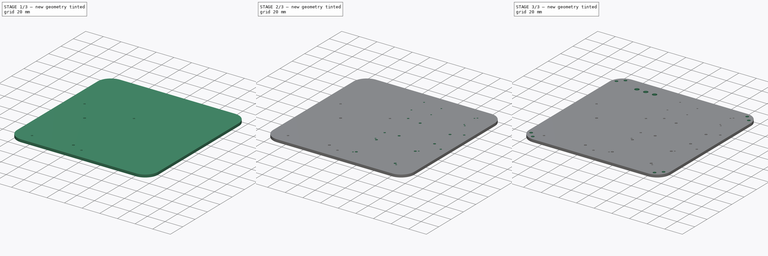
[diagram: build sequence overview — one tinted view per stage of 3, left to right]
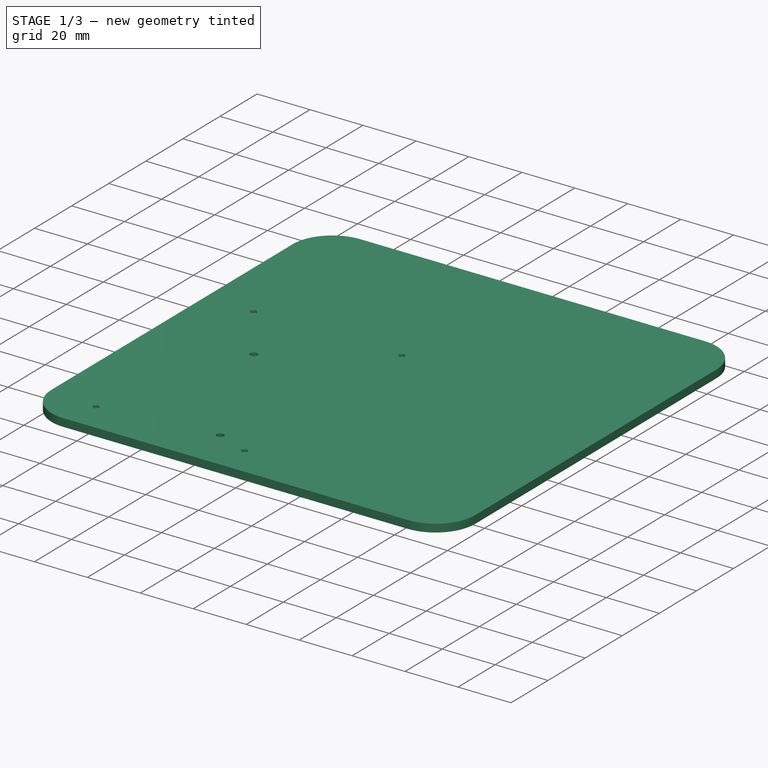
[diagram: stage 1 of 3 — iso view after this stage's code; geometry added in this stage tinted green]
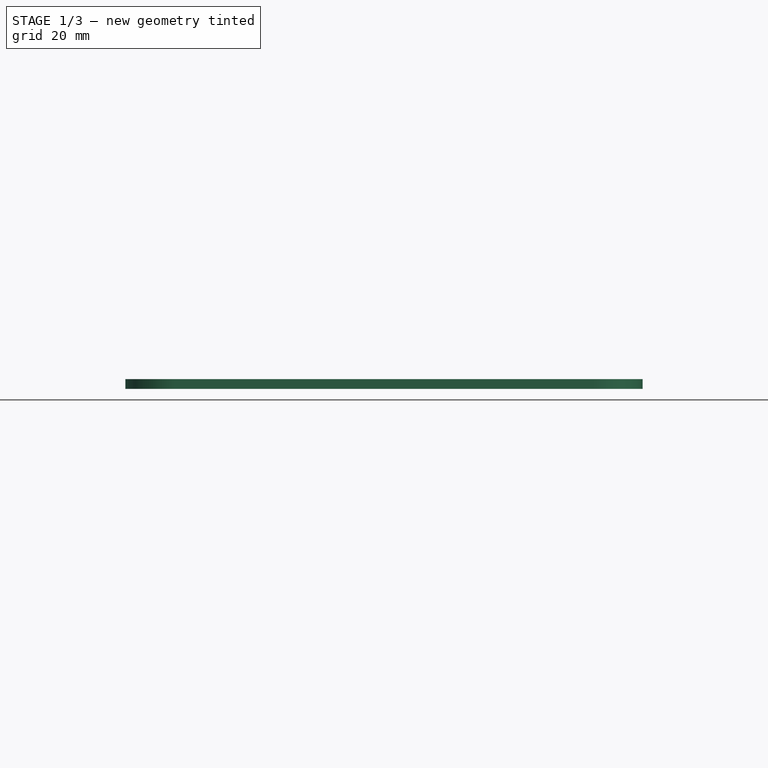
[diagram: stage 1 of 3 — front view after this stage's code; geometry added in this stage tinted green]
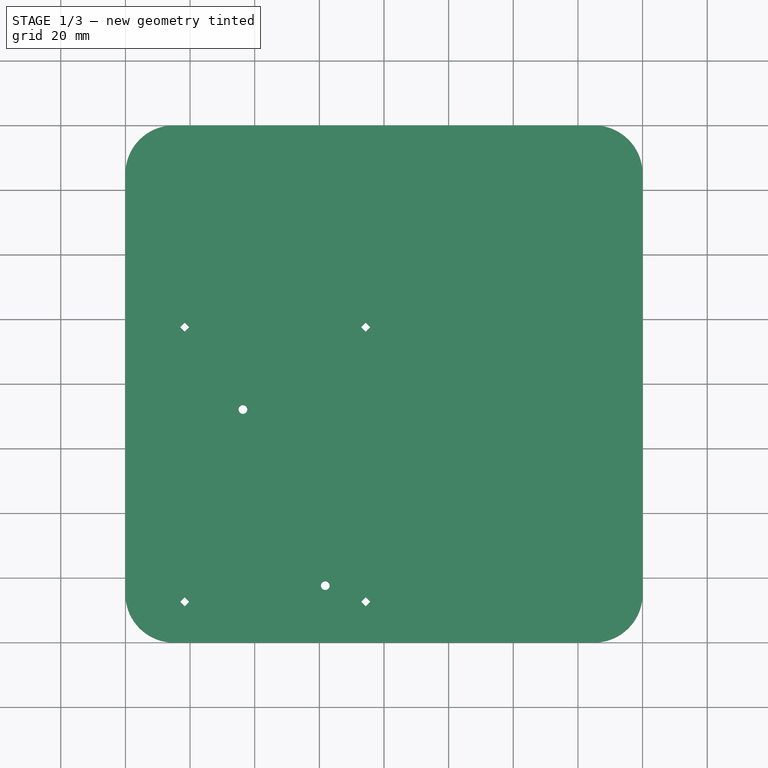
[diagram: stage 1 of 3 — top view after this stage's code; geometry added in this stage tinted green]
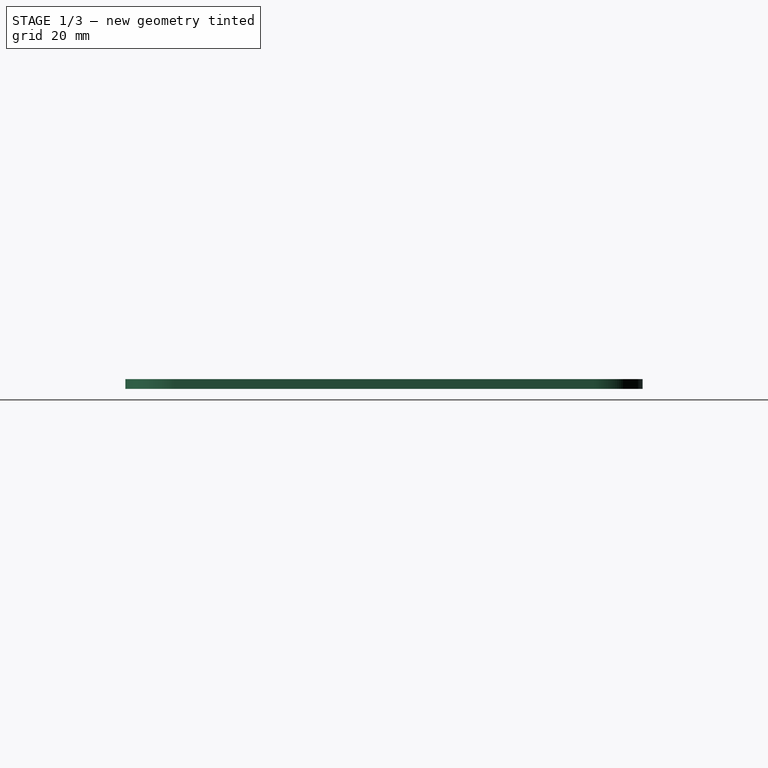
[diagram: stage 1 of 3 — right view after this stage's code; geometry added in this stage tinted green]
FCSTD DOCUMENT  (FreeCAD 0.16R6151 (Git))
Label: Board
License: All rights reserved
LicenseURL: http://en.wikipedia.org/wiki/All_rights_reserved
objects: Sketcher::SketchObject×7, PartDesign::Pocket×6, PartDesign::Pad×1
note: 21 computed .brp shape members not serialized (recipe doc carries the construction recipe); baked Part::Feature solids carry a one-line shape summary decoded from their .brp

FEATURE [Sketcher::SketchObject] Sketch  label="Board"
  sketch-geometry (8):
    g0: LineSegment StartX=15 StartY=0 StartZ=0 EndX=145 EndY=0 EndZ=0
    g1: LineSegment StartX=160 StartY=15 StartZ=0 EndX=160 EndY=145 EndZ=0
    g2: LineSegment StartX=145 StartY=160 StartZ=0 EndX=15 EndY=160 EndZ=0
    g3: LineSegment StartX=0 StartY=145 StartZ=0 EndX=0 EndY=15 EndZ=0
    g4: ArcOfCircle CenterX=15 CenterY=15 CenterZ=0 NormalX=0 NormalY=0 NormalZ=1 Radius=15 StartAngle=3.14159 EndAngle=4.71239
    g5: ArcOfCircle CenterX=145 CenterY=15 CenterZ=0 NormalX=0 NormalY=0 NormalZ=1 Radius=15 StartAngle=4.71239 EndAngle=6.28318
    g6: ArcOfCircle CenterX=145 CenterY=145 CenterZ=0 NormalX=0 NormalY=0 NormalZ=1 Radius=15 StartAngle=1.04525e-06 EndAngle=1.5708
    g7: ArcOfCircle CenterX=15 CenterY=145 CenterZ=0 NormalX=0 NormalY=0 NormalZ=1 Radius=15 StartAngle=1.57079 EndAngle=3.14159
  constraints (28):
    c: Horizontal(g0)
    c: Vertical(g1)
    c: Horizontal(g2)
    c: Vertical(g3)
    c: Coincident(g4,g3)
    c: Coincident(g4,g0)
    c: Coincident(g5,g0)
    c: Coincident(g5,g1)
    c: Coincident(g6,g2)
    c: Coincident(g6,g1)
    c: Equal(g2,g0)
    c: Equal(g1,g0)
    c: Equal(g3,g0)
    c: Equal(g4,g5)
    c: Equal(g5,g6)
    c: Tangent(g2,g6)
    c: Tangent(g1,g6)
    c: Tangent(g1,g5)
    c: Tangent(g0,g5)
    c: Tangent(g0,g4)
    c: Tangent(g3,g4)
    c: Coincident(g7,g3)
    c: Coincident(g7,g2)
    c: DistanceX(g3,g1) = 160
    c: Tangent(g3,g7)
    c: Radius(g7) = 15
    c: PointOnObject(g0,g-1)
    c: PointOnObject(g3,g-2)
FEATURE [PartDesign::Pad] Pad  label="BoardPad"
  Length = 3
  Length2 = 100
  Sketch = -> Sketch
  Type = 0
FEATURE [Sketcher::SketchObject] Sketch001  label="RaspberryMounting"
  Support = -> Pad [Face10]
  sketch-geometry (26):
    g0: Circle CenterX=36.343 CenterY=72.0975 CenterZ=0 NormalX=0 NormalY=0 NormalZ=1 Radius=1.35
    g1: Circle CenterX=61.843 CenterY=17.5975 CenterZ=0 NormalX=0 NormalY=0 NormalZ=1 Radius=1.35
    g2: LineSegment StartX=18.343 StartY=99.0117 StartZ=0 EndX=16.9288 EndY=97.5975 EndZ=0
    g3: LineSegment StartX=16.9288 StartY=97.5975 StartZ=0 EndX=18.343 EndY=96.1833 EndZ=0
    g4: LineSegment StartX=18.343 StartY=96.1833 StartZ=0 EndX=19.7572 EndY=97.5975 EndZ=0
    g5: LineSegment StartX=19.7572 StartY=97.5975 StartZ=0 EndX=18.343 EndY=99.0117 EndZ=0
    g6: Circle [constr] CenterX=18.343 CenterY=97.5975 CenterZ=0 NormalX=0 NormalY=0 NormalZ=1 Radius=1.41421
    g7: LineSegment [constr] StartX=18.343 StartY=97.5975 StartZ=0 EndX=18.343 EndY=0 EndZ=0
    g8: LineSegment StartX=74.343 StartY=11.1833 StartZ=0 EndX=75.7572 EndY=12.5975 EndZ=0
    g9: LineSegment StartX=75.7572 StartY=12.5975 StartZ=0 EndX=74.343 EndY=14.0117 EndZ=0
    g10: LineSegment StartX=74.343 StartY=14.0117 StartZ=0 EndX=72.9288 EndY=12.5975 EndZ=0
    g11: LineSegment StartX=72.9288 StartY=12.5975 StartZ=0 EndX=74.343 EndY=11.1833 EndZ=0
    g12: Circle [constr] CenterX=74.343 CenterY=12.5975 CenterZ=0 NormalX=0 NormalY=0 NormalZ=1 Radius=1.41421
    g13: LineSegment StartX=18.343 StartY=11.1833 StartZ=0 EndX=19.7572 EndY=12.5975 EndZ=0
    g14: LineSegment StartX=19.7572 StartY=12.5975 StartZ=0 EndX=18.343 EndY=14.0117 EndZ=0
    g15: LineSegment StartX=18.343 StartY=14.0117 StartZ=0 EndX=16.9288 EndY=12.5975 EndZ=0
    g16: LineSegment StartX=16.9288 StartY=12.5975 StartZ=0 EndX=18.343 EndY=11.1833 EndZ=0
    g17: Circle [constr] CenterX=18.343 CenterY=12.5975 CenterZ=0 NormalX=0 NormalY=0 NormalZ=1 Radius=1.41421
    g18: LineSegment StartX=74.343 StartY=96.1833 StartZ=0 EndX=75.7572 EndY=97.5975 EndZ=0
    g19: LineSegment StartX=75.7572 StartY=97.5975 StartZ=0 EndX=74.343 EndY=99.0117 EndZ=0
    g20: LineSegment StartX=74.343 StartY=99.0117 StartZ=0 EndX=72.9288 EndY=97.5975 EndZ=0
    g21: LineSegment StartX=72.9288 StartY=97.5975 StartZ=0 EndX=74.343 EndY=96.1833 EndZ=0
    g22: Circle [constr] CenterX=74.343 CenterY=97.5975 CenterZ=0 NormalX=0 NormalY=0 NormalZ=1 Radius=1.41421
    g23: LineSegment [constr] StartX=74.343 StartY=97.5975 StartZ=0 EndX=74.343 EndY=0 EndZ=0
    g24: LineSegment [constr] StartX=74.343 StartY=97.5975 StartZ=0 EndX=0 EndY=97.5975 EndZ=0
    g25: LineSegment [constr] StartX=74.343 StartY=12.5975 StartZ=0 EndX=0 EndY=12.5975 EndZ=0
  constraints (76):
    c: Equal(g1,g0)
    c: Radius(g0) = 1.35
    c: DistanceX(g1,g0) = -25.5
    c: DistanceY(g0,g1) = -54.5
    c: Coincident(g2,g3)
    c: Coincident(g3,g4)
    c: Coincident(g4,g5)
    c: Coincident(g5,g2)
    c: Equal(g2,g3)
    c: Equal(g2,g4)
    c: Equal(g2,g5)
    c: PointOnObject(g2,g6)
    c: PointOnObject(g3,g6)
    c: PointOnObject(g4,g6)
    c: PointOnObject(g5,g6)
    c: Coincident(g7,g6)
    c: PointOnObject(g7,g-1)
    c: Vertical(g7)
    c: PointOnObject(g2,g7)
    c: Distance(g3) = 2
    c: DistanceY(g2,g0) = -25.5
    c: DistanceX(g3,g0) = 18
    c: Coincident(g8,g9)
    c: Coincident(g9,g10)
    c: Coincident(g10,g11)
    c: Coincident(g11,g8)
    c: Equal(g8,g9)
    c: Equal(g8,g10)
    c: Equal(g8,g11)
    c: PointOnObject(g8,g12)
    c: PointOnObject(g9,g12)
    c: PointOnObject(g10,g12)
    c: PointOnObject(g11,g12)
    c: Coincident(g13,g14)
    c: Coincident(g14,g15)
    c: Coincident(g15,g16)
    c: Coincident(g16,g13)
    c: Equal(g13,g14)
    c: Equal(g13,g15)
    c: Equal(g13,g16)
    c: PointOnObject(g13,g17)
    c: PointOnObject(g14,g17)
    c: PointOnObject(g15,g17)
    c: PointOnObject(g16,g17)
    c: Coincident(g18,g19)
    c: Coincident(g19,g20)
    c: Coincident(g20,g21)
    c: Coincident(g21,g18)
    c: Equal(g18,g19)
    c: Equal(g18,g20)
    c: Equal(g18,g21)
    c: PointOnObject(g18,g22)
    c: PointOnObject(g19,g22)
    c: PointOnObject(g20,g22)
    c: PointOnObject(g21,g22)
    c: Distance(g9) = 2
    c: Distance(g14) = 2
    c: PointOnObject(g17,g7)
    c: PointOnObject(g13,g7)
    c: Coincident(g23,g22)
    c: PointOnObject(g23,g-1)
    c: Vertical(g23)
    c: PointOnObject(g12,g23)
    c: PointOnObject(g8,g23)
    c: PointOnObject(g18,g23)
    c: Distance(g18) = 2
    c: Coincident(g24,g22)
    c: PointOnObject(g24,g-2)
    c: Horizontal(g24)
    c: PointOnObject(g6,g24)
    c: Coincident(g25,g12)
    c: PointOnObject(g25,g-2)
    c: Horizontal(g25)
    c: PointOnObject(g17,g25)
    c: DistanceY(g1,g10) = -5
    c: DistanceX(g1,g9) = 12.5
FEATURE [PartDesign::Pocket] Pocket  label="RaspberryMountingPocket"
  Length = 5
  Sketch = -> Sketch001
  Type = 1
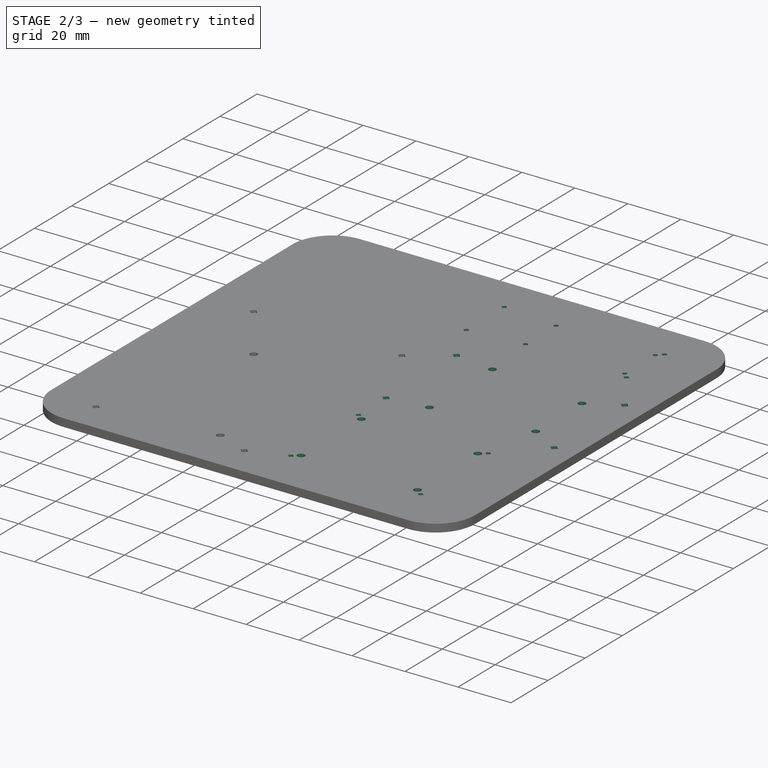
[diagram: stage 2 of 3 — iso view after this stage's code; geometry added in this stage tinted green]
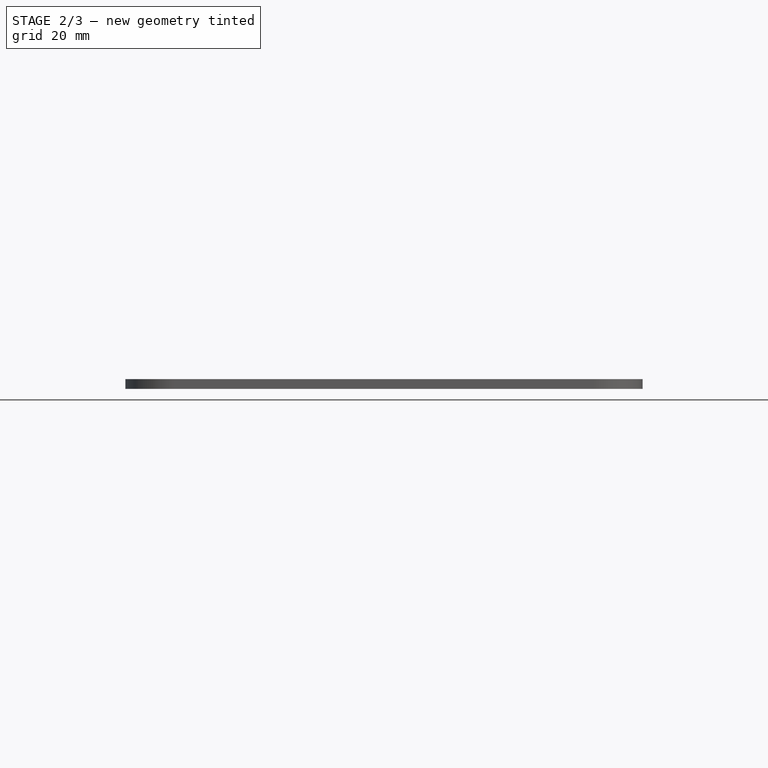
[diagram: stage 2 of 3 — front view after this stage's code; geometry added in this stage tinted green]
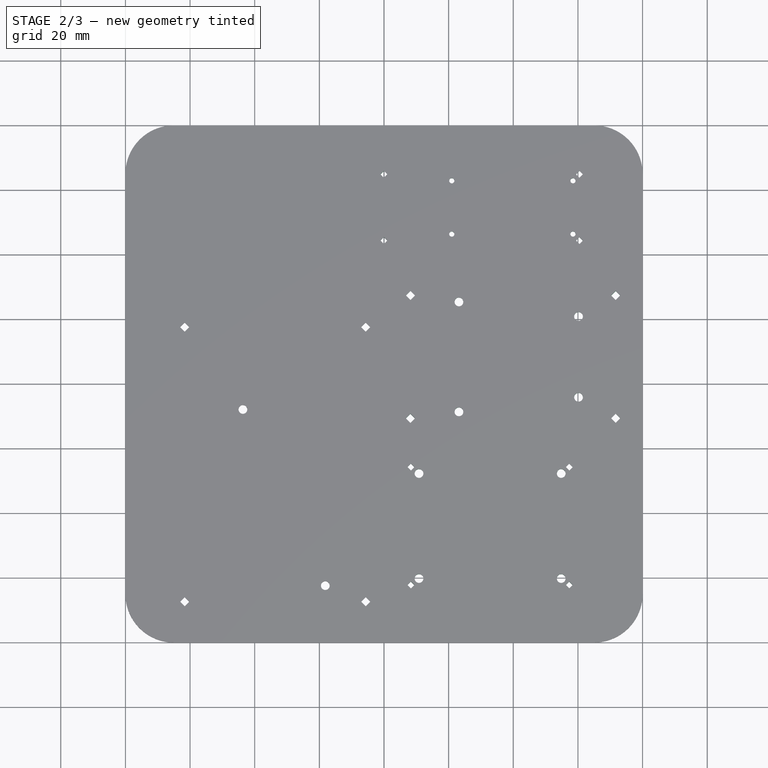
[diagram: stage 2 of 3 — top view after this stage's code; geometry added in this stage tinted green]
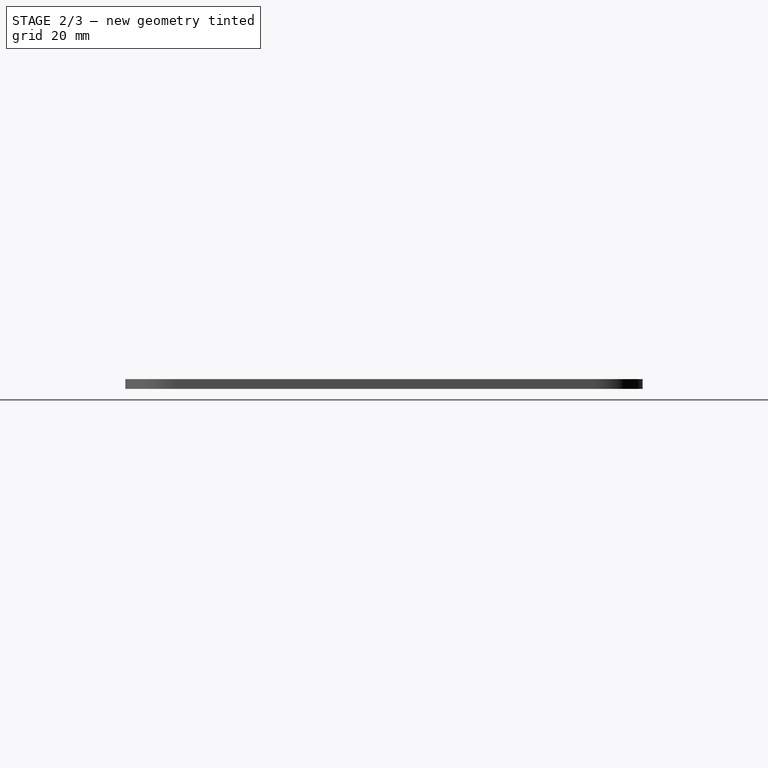
[diagram: stage 2 of 3 — right view after this stage's code; geometry added in this stage tinted green]
FEATURE [Sketcher::SketchObject] Sketch002  label="RelayMounting"
  Support = -> Pocket [Face5]
  sketch-geometry (32):
    g0: Circle CenterX=90.8318 CenterY=52.2837 CenterZ=0 NormalX=0 NormalY=0 NormalZ=1 Radius=1.35
    g1: Circle CenterX=134.832 CenterY=19.7837 CenterZ=0 NormalX=0 NormalY=0 NormalZ=1 Radius=1.35
    g2: LineSegment StartX=88.3318 StartY=53.223 StartZ=0 EndX=89.3924 EndY=54.2837 EndZ=0
    g3: LineSegment StartX=89.3924 StartY=54.2837 StartZ=0 EndX=88.3318 EndY=55.3443 EndZ=0
    g4: LineSegment StartX=88.3318 StartY=55.3443 StartZ=0 EndX=87.2711 EndY=54.2837 EndZ=0
    g5: LineSegment StartX=87.2711 StartY=54.2837 StartZ=0 EndX=88.3318 EndY=53.223 EndZ=0
    g6: Circle [constr] CenterX=88.3318 CenterY=54.2837 CenterZ=0 NormalX=0 NormalY=0 NormalZ=1 Radius=1.06066
    g7: LineSegment [constr] StartX=88.3318 StartY=54.2837 StartZ=0 EndX=88.3318 EndY=0 EndZ=0
    g8: LineSegment StartX=137.332 StartY=16.723 StartZ=0 EndX=138.392 EndY=17.7837 EndZ=0
    g9: LineSegment StartX=138.392 StartY=17.7837 StartZ=0 EndX=137.332 EndY=18.8443 EndZ=0
    g10: LineSegment StartX=137.332 StartY=18.8443 StartZ=0 EndX=136.271 EndY=17.7837 EndZ=0
    g11: LineSegment StartX=136.271 StartY=17.7837 StartZ=0 EndX=137.332 EndY=16.723 EndZ=0
    g12: Circle [constr] CenterX=137.332 CenterY=17.7837 CenterZ=0 NormalX=0 NormalY=0 NormalZ=1 Radius=1.06066
    g13: LineSegment StartX=88.3318 StartY=16.723 StartZ=0 EndX=89.3924 EndY=17.7837 EndZ=0
    g14: LineSegment StartX=89.3924 StartY=17.7837 StartZ=0 EndX=88.3318 EndY=18.8443 EndZ=0
    g15: LineSegment StartX=88.3318 StartY=18.8443 StartZ=0 EndX=87.2711 EndY=17.7837 EndZ=0
    g16: LineSegment StartX=87.2711 StartY=17.7837 StartZ=0 EndX=88.3318 EndY=16.723 EndZ=0
    g17: Circle [constr] CenterX=88.3318 CenterY=17.7837 CenterZ=0 NormalX=0 NormalY=0 NormalZ=1 Radius=1.06066
    g18: LineSegment StartX=137.332 StartY=53.223 StartZ=0 EndX=138.392 EndY=54.2837 EndZ=0
    g19: LineSegment StartX=138.392 StartY=54.2837 StartZ=0 EndX=137.332 EndY=55.3443 EndZ=0
    g20: LineSegment StartX=137.332 StartY=55.3443 StartZ=0 EndX=136.271 EndY=54.2837 EndZ=0
    g21: LineSegment StartX=136.271 StartY=54.2837 StartZ=0 EndX=137.332 EndY=53.223 EndZ=0
    g22: Circle [constr] CenterX=137.332 CenterY=54.2837 CenterZ=0 NormalX=0 NormalY=0 NormalZ=1 Radius=1.06066
    g23: LineSegment [constr] StartX=137.332 StartY=54.2837 StartZ=0 EndX=137.332 EndY=0 EndZ=0
    g24: LineSegment [constr] StartX=137.332 StartY=54.2837 StartZ=0 EndX=0 EndY=54.2837 EndZ=0
    g25: LineSegment [constr] StartX=137.332 StartY=17.7837 StartZ=0 EndX=0 EndY=17.7837 EndZ=0
    g26: Circle CenterX=90.8318 CenterY=19.7837 CenterZ=0 NormalX=0 NormalY=0 NormalZ=1 Radius=1.35
    g27: Circle CenterX=134.832 CenterY=52.2837 CenterZ=0 NormalX=0 NormalY=0 NormalZ=1 Radius=1.35
    g28: LineSegment [constr] StartX=90.8318 StartY=52.2837 StartZ=0 EndX=134.832 EndY=52.2837 EndZ=0
    g29: LineSegment [constr] StartX=134.832 StartY=52.2837 StartZ=0 EndX=134.832 EndY=19.7837 EndZ=0
    g30: LineSegment [constr] StartX=134.832 StartY=19.7837 StartZ=0 EndX=90.8318 EndY=19.7837 EndZ=0
    g31: LineSegment [constr] StartX=90.8318 StartY=19.7837 StartZ=0 EndX=90.8318 EndY=52.2837 EndZ=0
  constraints (90):
    c: Equal(g1,g0)
    c: Radius(g0) = 1.35
    c: DistanceX(g1,g0) = -44
    c: DistanceY(g0,g1) = -32.5
    c: Coincident(g2,g3)
    c: Coincident(g3,g4)
    c: Coincident(g4,g5)
    c: Coincident(g5,g2)
    c: Equal(g2,g3)
    c: Equal(g2,g4)
    c: Equal(g2,g5)
    c: PointOnObject(g2,g6)
    c: PointOnObject(g3,g6)
    c: PointOnObject(g4,g6)
    c: PointOnObject(g5,g6)
    c: Coincident(g7,g6)
    c: PointOnObject(g7,g-1)
    c: Vertical(g7)
    c: PointOnObject(g2,g7)
    c: DistanceY(g2,g0) = -2
    c: DistanceX(g3,g0) = 2.5
    c: Coincident(g8,g9)
    c: Coincident(g9,g10)
    c: Coincident(g10,g11)
    c: Coincident(g11,g8)
    c: Equal(g8,g9)
    c: Equal(g8,g10)
    c: Equal(g8,g11)
    c: PointOnObject(g8,g12)
    c: PointOnObject(g9,g12)
    c: PointOnObject(g10,g12)
    c: PointOnObject(g11,g12)
    c: Coincident(g13,g14)
    c: Coincident(g14,g15)
    c: Coincident(g15,g16)
    c: Coincident(g16,g13)
    c: Equal(g13,g14)
    c: Equal(g13,g15)
    c: Equal(g13,g16)
    c: PointOnObject(g13,g17)
    c: PointOnObject(g14,g17)
    c: PointOnObject(g15,g17)
    c: PointOnObject(g16,g17)
    c: Coincident(g18,g19)
    c: Coincident(g19,g20)
    c: Coincident(g20,g21)
    c: Coincident(g21,g18)
    c: Equal(g18,g19)
    c: Equal(g18,g20)
    c: Equal(g18,g21)
    c: PointOnObject(g18,g22)
    c: PointOnObject(g19,g22)
    c: PointOnObject(g20,g22)
    c: PointOnObject(g21,g22)
    c: Distance(g9) = 1.5
    c: PointOnObject(g17,g7)
    c: PointOnObject(g13,g7)
    c: Coincident(g23,g22)
    c: PointOnObject(g23,g-1)
    c: Vertical(g23)
    c: PointOnObject(g12,g23)
    c: PointOnObject(g8,g23)
    c: PointOnObject(g18,g23)
    c: Coincident(g24,g22)
    c: PointOnObject(g24,g-2)
    c: Horizontal(g24)
    c: PointOnObject(g6,g24)
    c: Coincident(g25,g12)
    c: PointOnObject(g25,g-2)
    c: Horizontal(g25)
    c: PointOnObject(g17,g25)
    c: DistanceY(g1,g10) = -2
    c: DistanceX(g1,g9) = 2.5
    c: Equal(g0,g27)
    c: Equal(g27,g26)
    c: Coincident(g28,g29)
    c: Coincident(g29,g30)
    c: Coincident(g30,g31)
    c: Coincident(g31,g28)
    c: Horizontal(g28)
    c: Horizontal(g30)
    c: Vertical(g29)
    c: Vertical(g31)
    c: Coincident(g28,g0)
    c: Coincident(g29,g1)
    c: Coincident(g26,g30)
    c: Coincident(g27,g28)
    c: Equal(g16,g9)
    c: Equal(g3,g19)
    c: Equal(g19,g9)
FEATURE [PartDesign::Pocket] Pocket001  label="RelayMountingPocket"
  Length = 5
  Sketch = -> Sketch002
  Type = 1
FEATURE [Sketcher::SketchObject] Sketch003  label="RFIDMounting"
  Support = -> Pocket001 [Face5]
  sketch-geometry (33):
    g0: Circle CenterX=103.185 CenterY=105.37 CenterZ=0 NormalX=0 NormalY=0 NormalZ=1 Radius=1.35
    g1: Circle CenterX=140.185 CenterY=75.8704 CenterZ=0 NormalX=0 NormalY=0 NormalZ=1 Radius=1.35
    g2: LineSegment StartX=88.1855 StartY=105.956 StartZ=0 EndX=89.5997 EndY=107.37 EndZ=0
    g3: LineSegment StartX=89.5997 StartY=107.37 StartZ=0 EndX=88.1855 EndY=108.785 EndZ=0
    g4: LineSegment StartX=88.1855 StartY=108.785 StartZ=0 EndX=86.7713 EndY=107.37 EndZ=0
    g5: LineSegment StartX=86.7713 StartY=107.37 StartZ=0 EndX=88.1855 EndY=105.956 EndZ=0
    g6: Circle [constr] CenterX=88.1855 CenterY=107.37 CenterZ=0 NormalX=0 NormalY=0 NormalZ=1 Radius=1.41421
    g7: LineSegment [constr] StartX=88.1855 StartY=107.37 StartZ=0 EndX=88.1855 EndY=0 EndZ=0
    g8: LineSegment StartX=151.685 StartY=67.9562 StartZ=0 EndX=153.1 EndY=69.3704 EndZ=0
    g9: LineSegment StartX=153.1 StartY=69.3704 StartZ=0 EndX=151.685 EndY=70.7847 EndZ=0
    g10: LineSegment StartX=151.685 StartY=70.7847 StartZ=0 EndX=150.271 EndY=69.3704 EndZ=0
    g11: LineSegment StartX=150.271 StartY=69.3704 StartZ=0 EndX=151.685 EndY=67.9562 EndZ=0
    g12: Circle [constr] CenterX=151.685 CenterY=69.3704 CenterZ=0 NormalX=0 NormalY=0 NormalZ=1 Radius=1.41421
    g13: LineSegment StartX=88.1855 StartY=67.9562 StartZ=0 EndX=89.5997 EndY=69.3704 EndZ=0
    g14: LineSegment StartX=89.5997 StartY=69.3704 StartZ=0 EndX=88.1855 EndY=70.7847 EndZ=0
    g15: LineSegment StartX=88.1855 StartY=70.7847 StartZ=0 EndX=86.7713 EndY=69.3704 EndZ=0
    g16: LineSegment StartX=86.7713 StartY=69.3704 StartZ=0 EndX=88.1855 EndY=67.9562 EndZ=0
    g17: Circle [constr] CenterX=88.1855 CenterY=69.3704 CenterZ=0 NormalX=0 NormalY=0 NormalZ=1 Radius=1.41421
    g18: LineSegment StartX=151.685 StartY=105.956 StartZ=0 EndX=153.1 EndY=107.37 EndZ=0
    g19: LineSegment StartX=153.1 StartY=107.37 StartZ=0 EndX=151.685 EndY=108.785 EndZ=0
    g20: LineSegment StartX=151.685 StartY=108.785 StartZ=0 EndX=150.271 EndY=107.37 EndZ=0
    g21: LineSegment StartX=150.271 StartY=107.37 StartZ=0 EndX=151.685 EndY=105.956 EndZ=0
    g22: Circle [constr] CenterX=151.685 CenterY=107.37 CenterZ=0 NormalX=0 NormalY=0 NormalZ=1 Radius=1.41421
    g23: LineSegment [constr] StartX=151.685 StartY=107.37 StartZ=0 EndX=151.685 EndY=0 EndZ=0
    g24: LineSegment [constr] StartX=151.685 StartY=107.37 StartZ=0 EndX=0 EndY=107.37 EndZ=0
    g25: LineSegment [constr] StartX=151.685 StartY=69.3704 StartZ=0 EndX=0 EndY=69.3704 EndZ=0
    g26: Circle CenterX=103.185 CenterY=71.3704 CenterZ=0 NormalX=0 NormalY=0 NormalZ=1 Radius=1.35
    g27: Circle CenterX=140.185 CenterY=100.87 CenterZ=0 NormalX=0 NormalY=0 NormalZ=1 Radius=1.35
    g28: LineSegment [constr] StartX=103.185 StartY=105.37 StartZ=0 EndX=103.185 EndY=88.3704 EndZ=0
    g29: LineSegment [constr] StartX=103.185 StartY=88.3704 StartZ=0 EndX=103.185 EndY=71.3704 EndZ=0
    g30: LineSegment [constr] StartX=140.185 StartY=100.87 StartZ=0 EndX=140.185 EndY=88.3704 EndZ=0
    g31: LineSegment [constr] StartX=140.185 StartY=88.3704 StartZ=0 EndX=140.185 EndY=75.8704 EndZ=0
    g32: LineSegment [constr] StartX=103.185 StartY=88.3704 StartZ=0 EndX=140.185 EndY=88.3704 EndZ=0
  constraints (94):
    c: Equal(g1,g0)
    c: Radius(g0) = 1.35
    c: DistanceX(g1,g0) = -37
    c: Coincident(g2,g3)
    c: Coincident(g3,g4)
    c: Coincident(g4,g5)
    c: Coincident(g5,g2)
    c: Equal(g2,g3)
    c: Equal(g2,g4)
    c: Equal(g2,g5)
    c: PointOnObject(g2,g6)
    c: PointOnObject(g3,g6)
    c: PointOnObject(g4,g6)
    c: PointOnObject(g5,g6)
    c: Coincident(g7,g6)
    c: PointOnObject(g7,g-1)
    c: Vertical(g7)
    c: PointOnObject(g2,g7)
    c: Distance(g3) = 2
    c: DistanceY(g2,g0) = -2
    c: DistanceX(g3,g0) = 15
    c: Coincident(g8,g9)
    c: Coincident(g9,g10)
    c: Coincident(g10,g11)
    c: Coincident(g11,g8)
    c: Equal(g8,g9)
    c: Equal(g8,g10)
    c: Equal(g8,g11)
    c: PointOnObject(g8,g12)
    c: PointOnObject(g9,g12)
    c: PointOnObject(g10,g12)
    c: PointOnObject(g11,g12)
    c: Coincident(g13,g14)
    c: Coincident(g14,g15)
    c: Coincident(g15,g16)
    c: Coincident(g16,g13)
    c: Equal(g13,g14)
    c: Equal(g13,g15)
    c: Equal(g13,g16)
    c: PointOnObject(g13,g17)
    c: PointOnObject(g14,g17)
    c: PointOnObject(g15,g17)
    c: PointOnObject(g16,g17)
    c: Coincident(g18,g19)
    c: Coincident(g19,g20)
    c: Coincident(g20,g21)
    c: Coincident(g21,g18)
    c: Equal(g18,g19)
    c: Equal(g18,g20)
    c: Equal(g18,g21)
    c: PointOnObject(g18,g22)
    c: PointOnObject(g19,g22)
    c: PointOnObject(g20,g22)
    c: PointOnObject(g21,g22)
    c: Distance(g9) = 2
    c: Distance(g14) = 2
    c: PointOnObject(g17,g7)
    c: PointOnObject(g13,g7)
    c: Coincident(g23,g22)
    c: PointOnObject(g23,g-1)
    c: Vertical(g23)
    c: PointOnObject(g12,g23)
    c: PointOnObject(g8,g23)
    c: PointOnObject(g18,g23)
    c: Distance(g18) = 2
    c: Coincident(g24,g22)
    c: PointOnObject(g24,g-2)
    c: Horizontal(g24)
    c: PointOnObject(g6,g24)
    c: Coincident(g25,g12)
    c: PointOnObject(g25,g-2)
    c: Horizontal(g25)
    c: PointOnObject(g17,g25)
    c: DistanceX(g1,g9) = 11.5
    c: Equal(g27,g0)
    c: Equal(g0,g26)
    c: Coincident(g28,g0)
    c: Vertical(g28)
    c: Coincident(g28,g29)
    c: Coincident(g29,g26)
    c: Vertical(g29)
    c: Coincident(g30,g27)
    c: Vertical(g30)
    c: Coincident(g30,g31)
    c: Coincident(g31,g1)
    c: Vertical(g31)
    c: Coincident(g32,g28)
    c: Coincident(g32,g30)
    c: Horizontal(g32)
    c: Equal(g28,g29)
    c: Equal(g30,g31)
    c: DistanceY(g0,g26) = -34
    c: DistanceY(g27,g1) = -25
    c: DistanceY(g10,g26) = 2
FEATURE [PartDesign::Pocket] Pocket002  label="RFIDMountingPocket"
  Length = 5
  Sketch = -> Sketch003
  Type = 1
FEATURE [Sketcher::SketchObject] Sketch004  label="PowerMounting"
  Support = -> Pocket002 [Face5]
  sketch-geometry (32):
    g0: Circle CenterX=100.969 CenterY=142.871 CenterZ=0 NormalX=0 NormalY=0 NormalZ=1 Radius=0.8
    g1: Circle CenterX=138.469 CenterY=126.371 CenterZ=0 NormalX=0 NormalY=0 NormalZ=1 Radius=0.8
    g2: LineSegment StartX=79.9687 StartY=143.81 StartZ=0 EndX=81.0293 EndY=144.871 EndZ=0
    g3: LineSegment StartX=81.0293 StartY=144.871 StartZ=0 EndX=79.9687 EndY=145.931 EndZ=0
    g4: LineSegment StartX=79.9687 StartY=145.931 StartZ=0 EndX=78.908 EndY=144.871 EndZ=0
    g5: LineSegment StartX=78.908 StartY=144.871 StartZ=0 EndX=79.9687 EndY=143.81 EndZ=0
    g6: Circle [constr] CenterX=79.9687 CenterY=144.871 CenterZ=0 NormalX=0 NormalY=0 NormalZ=1 Radius=1.06066
    g7: LineSegment [constr] StartX=79.9687 StartY=144.871 StartZ=0 EndX=79.9687 EndY=0 EndZ=0
    g8: LineSegment StartX=140.469 StartY=123.31 StartZ=0 EndX=141.529 EndY=124.371 EndZ=0
    g9: LineSegment StartX=141.529 StartY=124.371 StartZ=0 EndX=140.469 EndY=125.431 EndZ=0
    g10: LineSegment StartX=140.469 StartY=125.431 StartZ=0 EndX=139.408 EndY=124.371 EndZ=0
    g11: LineSegment StartX=139.408 StartY=124.371 StartZ=0 EndX=140.469 EndY=123.31 EndZ=0
    g12: Circle [constr] CenterX=140.469 CenterY=124.371 CenterZ=0 NormalX=0 NormalY=0 NormalZ=1 Radius=1.06066
    g13: LineSegment StartX=79.9687 StartY=123.31 StartZ=0 EndX=81.0293 EndY=124.371 EndZ=0
    g14: LineSegment StartX=81.0293 StartY=124.371 StartZ=0 EndX=79.9687 EndY=125.431 EndZ=0
    g15: LineSegment StartX=79.9687 StartY=125.431 StartZ=0 EndX=78.908 EndY=124.371 EndZ=0
    g16: LineSegment StartX=78.908 StartY=124.371 StartZ=0 EndX=79.9687 EndY=123.31 EndZ=0
    g17: Circle [constr] CenterX=79.9687 CenterY=124.371 CenterZ=0 NormalX=0 NormalY=0 NormalZ=1 Radius=1.06066
    g18: LineSegment StartX=140.469 StartY=143.81 StartZ=0 EndX=141.529 EndY=144.871 EndZ=0
    g19: LineSegment StartX=141.529 StartY=144.871 StartZ=0 EndX=140.469 EndY=145.931 EndZ=0
    g20: LineSegment StartX=140.469 StartY=145.931 StartZ=0 EndX=139.408 EndY=144.871 EndZ=0
    g21: LineSegment StartX=139.408 StartY=144.871 StartZ=0 EndX=140.469 EndY=143.81 EndZ=0
    g22: Circle [constr] CenterX=140.469 CenterY=144.871 CenterZ=0 NormalX=0 NormalY=0 NormalZ=1 Radius=1.06066
    g23: LineSegment [constr] StartX=140.469 StartY=144.871 StartZ=0 EndX=140.469 EndY=0 EndZ=0
    g24: LineSegment [constr] StartX=140.469 StartY=144.871 StartZ=0 EndX=0 EndY=144.871 EndZ=0
    g25: LineSegment [constr] StartX=140.469 StartY=124.371 StartZ=0 EndX=0 EndY=124.371 EndZ=0
    g26: Circle CenterX=100.969 CenterY=126.371 CenterZ=0 NormalX=0 NormalY=0 NormalZ=1 Radius=0.8
    g27: Circle CenterX=138.469 CenterY=142.871 CenterZ=0 NormalX=0 NormalY=0 NormalZ=1 Radius=0.8
    g28: LineSegment [constr] StartX=100.969 StartY=142.871 StartZ=0 EndX=138.469 EndY=142.871 EndZ=0
    g29: LineSegment [constr] StartX=138.469 StartY=142.871 StartZ=0 EndX=138.469 EndY=126.371 EndZ=0
    g30: LineSegment [constr] StartX=138.469 StartY=126.371 StartZ=0 EndX=100.969 EndY=126.371 EndZ=0
    g31: LineSegment [constr] StartX=100.969 StartY=126.371 StartZ=0 EndX=100.969 EndY=142.871 EndZ=0
  constraints (90):
    c: Equal(g1,g0)
    c: Radius(g0) = 0.8
    c: DistanceX(g1,g0) = -37.5
    c: DistanceY(g0,g1) = -16.5
    c: Coincident(g2,g3)
    c: Coincident(g3,g4)
    c: Coincident(g4,g5)
    c: Coincident(g5,g2)
    c: Equal(g2,g3)
    c: Equal(g2,g4)
    c: Equal(g2,g5)
    c: PointOnObject(g2,g6)
    c: PointOnObject(g3,g6)
    c: PointOnObject(g4,g6)
    c: PointOnObject(g5,g6)
    c: Coincident(g7,g6)
    c: PointOnObject(g7,g-1)
    c: Vertical(g7)
    c: PointOnObject(g2,g7)
    c: DistanceY(g2,g0) = -2
    c: DistanceX(g3,g0) = 21
    c: Coincident(g8,g9)
    c: Coincident(g9,g10)
    c: Coincident(g10,g11)
    c: Coincident(g11,g8)
    c: Equal(g8,g9)
    c: Equal(g8,g10)
    c: Equal(g8,g11)
    c: PointOnObject(g8,g12)
    c: PointOnObject(g9,g12)
    c: PointOnObject(g10,g12)
    c: PointOnObject(g11,g12)
    c: Coincident(g13,g14)
    c: Coincident(g14,g15)
    c: Coincident(g15,g16)
    c: Coincident(g16,g13)
    c: Equal(g13,g14)
    c: Equal(g13,g15)
    c: Equal(g13,g16)
    c: PointOnObject(g13,g17)
    c: PointOnObject(g14,g17)
    c: PointOnObject(g15,g17)
    c: PointOnObject(g16,g17)
    c: Coincident(g18,g19)
    c: Coincident(g19,g20)
    c: Coincident(g20,g21)
    c: Coincident(g21,g18)
    c: Equal(g18,g19)
    c: Equal(g18,g20)
    c: Equal(g18,g21)
    c: PointOnObject(g18,g22)
    c: PointOnObject(g19,g22)
    c: PointOnObject(g20,g22)
    c: PointOnObject(g21,g22)
    c: Distance(g9) = 1.5
    c: PointOnObject(g17,g7)
    c: PointOnObject(g13,g7)
    c: Coincident(g23,g22)
    c: PointOnObject(g23,g-1)
    c: Vertical(g23)
    c: PointOnObject(g12,g23)
    c: PointOnObject(g8,g23)
    c: PointOnObject(g18,g23)
    c: Coincident(g24,g22)
    c: PointOnObject(g24,g-2)
    c: Horizontal(g24)
    c: PointOnObject(g6,g24)
    c: Coincident(g25,g12)
    c: PointOnObject(g25,g-2)
    c: Horizontal(g25)
    c: PointOnObject(g17,g25)
    c: DistanceY(g1,g10) = -2
    c: DistanceX(g1,g9) = 2
    c: Equal(g0,g27)
    c: Equal(g27,g26)
    c: Coincident(g28,g29)
    c: Coincident(g29,g30)
    c: Coincident(g30,g31)
    c: Coincident(g31,g28)
    c: Horizontal(g28)
    c: Horizontal(g30)
    c: Vertical(g29)
    c: Vertical(g31)
    c: Coincident(g28,g0)
    c: Coincident(g29,g1)
    c: Coincident(g26,g30)
    c: Coincident(g27,g28)
    c: Equal(g16,g9)
    c: Equal(g3,g19)
    c: Equal(g19,g9)
FEATURE [PartDesign::Pocket] Pocket003  label="PowerMountingPocket"
  Length = 5
  Sketch = -> Sketch004
  Type = 1
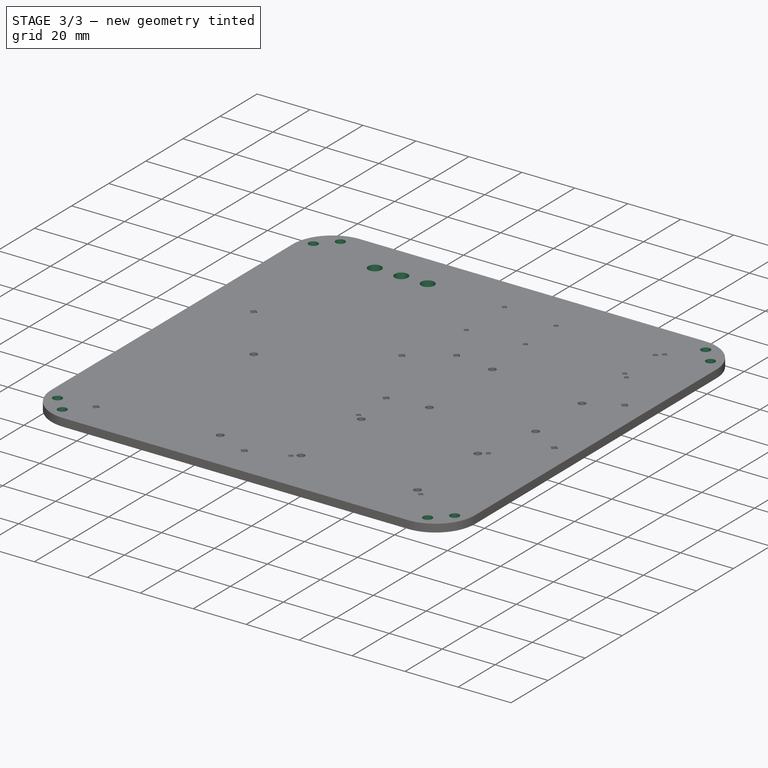
[diagram: stage 3 of 3 — iso view after this stage's code; geometry added in this stage tinted green]
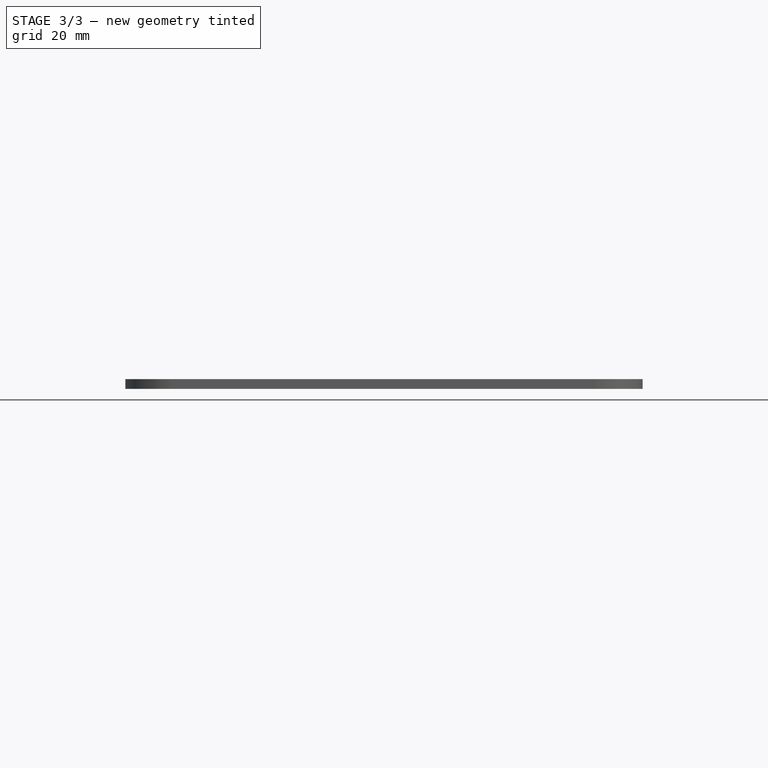
[diagram: stage 3 of 3 — front view after this stage's code; geometry added in this stage tinted green]
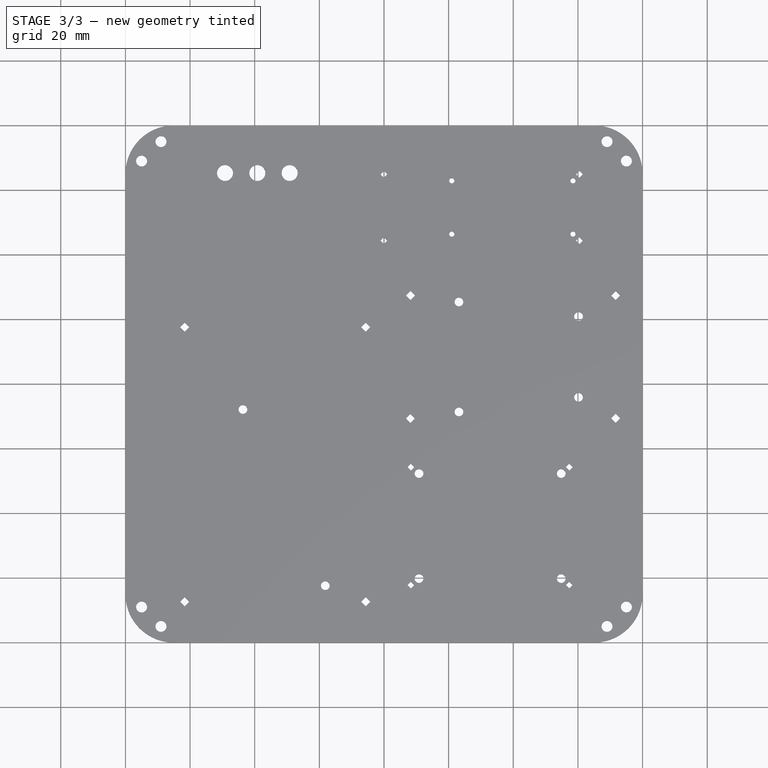
[diagram: stage 3 of 3 — top view after this stage's code; geometry added in this stage tinted green]
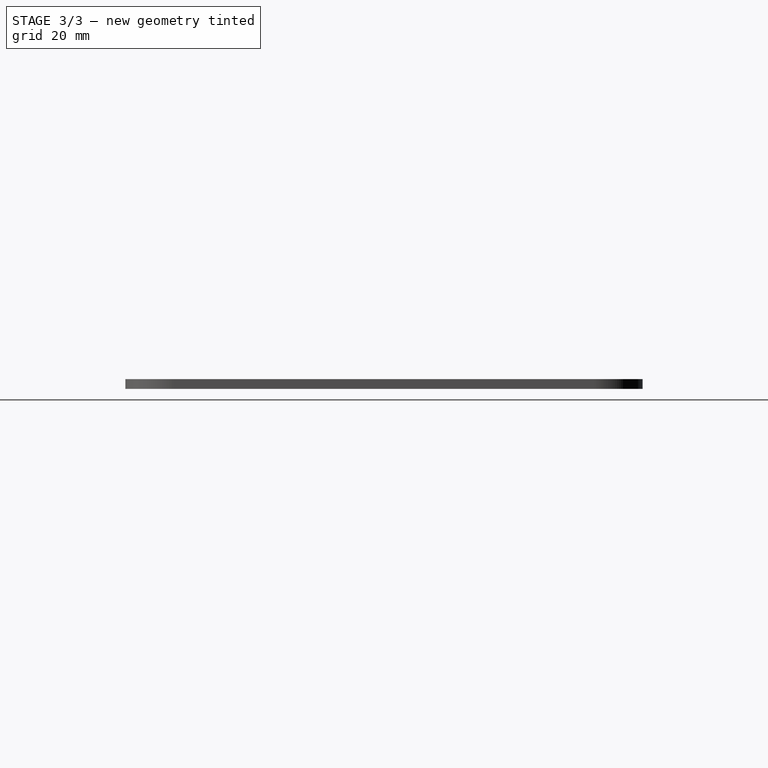
[diagram: stage 3 of 3 — right view after this stage's code; geometry added in this stage tinted green]
FEATURE [Sketcher::SketchObject] Sketch005  label="EdgeMounting"
  Support = -> Pocket003 [Face5]
  sketch-geometry (20):
    g0: Circle CenterX=5 CenterY=11 CenterZ=0 NormalX=0 NormalY=0 NormalZ=1 Radius=1.7
    g1: Circle CenterX=11 CenterY=5 CenterZ=0 NormalX=0 NormalY=0 NormalZ=1 Radius=1.7
    g2: Circle CenterX=155 CenterY=11 CenterZ=0 NormalX=0 NormalY=0 NormalZ=1 Radius=1.7
    g3: Circle CenterX=149 CenterY=5 CenterZ=0 NormalX=0 NormalY=0 NormalZ=1 Radius=1.7
    g4: Circle CenterX=149 CenterY=155 CenterZ=0 NormalX=0 NormalY=0 NormalZ=1 Radius=1.7
    g5: Circle CenterX=155 CenterY=149 CenterZ=0 NormalX=0 NormalY=0 NormalZ=1 Radius=1.7
    g6: Circle CenterX=11 CenterY=155 CenterZ=0 NormalX=0 NormalY=0 NormalZ=1 Radius=1.7
    g7: Circle CenterX=5 CenterY=149 CenterZ=0 NormalX=0 NormalY=0 NormalZ=1 Radius=1.7
    g8: LineSegment [constr] StartX=5 StartY=155 StartZ=0 EndX=11 EndY=155 EndZ=0
    g9: LineSegment [constr] StartX=11 StartY=155 StartZ=0 EndX=149 EndY=155 EndZ=0
    g10: LineSegment [constr] StartX=149 StartY=155 StartZ=0 EndX=155 EndY=155 EndZ=0
    g11: LineSegment [constr] StartX=155 StartY=155 StartZ=0 EndX=155 EndY=149 EndZ=0
    g12: LineSegment [constr] StartX=155 StartY=149 StartZ=0 EndX=155 EndY=11 EndZ=0
    g13: LineSegment [constr] StartX=155 StartY=11 StartZ=0 EndX=155 EndY=5 EndZ=0
    g14: LineSegment [constr] StartX=5 StartY=155 StartZ=0 EndX=5 EndY=149 EndZ=0
    g15: LineSegment [constr] StartX=5 StartY=149 StartZ=0 EndX=5 EndY=11 EndZ=0
    g16: LineSegment [constr] StartX=5 StartY=11 StartZ=0 EndX=5 EndY=5 EndZ=0
    g17: LineSegment [constr] StartX=5 StartY=5 StartZ=0 EndX=11 EndY=5 EndZ=0
    g18: LineSegment [constr] StartX=11 StartY=5 StartZ=0 EndX=149 EndY=5 EndZ=0
    g19: LineSegment [constr] StartX=149 StartY=5 StartZ=0 EndX=155 EndY=5 EndZ=0
  constraints (52):
    c: Equal(g1,g0)
    c: Radius(g1) = 1.7
    c: Equal(g7,g6)
    c: Equal(g6,g4)
    c: Equal(g4,g5)
    c: Equal(g5,g2)
    c: Equal(g2,g3)
    c: Equal(g3,g0)
    c: Coincident(g8,g6)
    c: Horizontal(g8)
    c: Coincident(g8,g9)
    c: Coincident(g9,g4)
    c: Horizontal(g9)
    c: Coincident(g9,g10)
    c: Horizontal(g10)
    c: Coincident(g10,g11)
    c: Coincident(g11,g5)
    c: Vertical(g11)
    c: Coincident(g11,g12)
    c: Coincident(g12,g2)
    c: Vertical(g12)
    c: Coincident(g12,g13)
    c: Vertical(g13)
    c: Coincident(g8,g14)
    c: Coincident(g14,g7)
    c: Vertical(g14)
    c: Coincident(g14,g15)
    c: Coincident(g15,g0)
    c: Vertical(g15)
    c: Coincident(g15,g16)
    c: Vertical(g16)
    c: Coincident(g16,g17)
    c: Coincident(g17,g1)
    c: Horizontal(g17)
    c: Coincident(g17,g18)
    c: Coincident(g18,g3)
    c: Horizontal(g18)
    c: Coincident(g18,g19)
    c: Coincident(g19,g13)
    c: Horizontal(g19)
    c: Equal(g8,g14)
    c: Equal(g14,g16)
    c: Equal(g16,g17)
    c: Equal(g17,g19)
    c: Equal(g19,g13)
    c: Equal(g13,g10)
    c: Equal(g10,g11)
    c: DistanceX(g8,g10) = 150
    c: Distance(g17) = 6
    c: DistanceX(g-1,g16) = 5
    c: DistanceY(g-1,g16) = 5
    c: DistanceY(g10,g13) = -150
FEATURE [PartDesign::Pocket] Pocket004
  Length = 5
  Sketch = -> Sketch005
  Type = 0
FEATURE [Sketcher::SketchObject] Sketch006  label="LEDMounting"
  Support = -> Pocket004 [Face5]
  sketch-geometry (5):
    g0: LineSegment [constr] StartX=30.8137 StartY=145.287 StartZ=0 EndX=40.8137 EndY=145.287 EndZ=0
    g1: LineSegment [constr] StartX=40.8137 StartY=145.287 StartZ=0 EndX=50.8137 EndY=145.287 EndZ=0
    g2: Circle CenterX=30.8137 CenterY=145.287 CenterZ=0 NormalX=0 NormalY=0 NormalZ=1 Radius=2.47
    g3: Circle CenterX=40.8137 CenterY=145.287 CenterZ=0 NormalX=0 NormalY=0 NormalZ=1 Radius=2.47
    g4: Circle CenterX=50.8137 CenterY=145.287 CenterZ=0 NormalX=0 NormalY=0 NormalZ=1 Radius=2.47
  constraints (11):
    c: Horizontal(g0)
    c: Coincident(g0,g1)
    c: Horizontal(g1)
    c: Equal(g1,g0)
    c: Coincident(g2,g0)
    c: Coincident(g3,g0)
    c: Coincident(g4,g1)
    c: Equal(g4,g3)
    c: Equal(g3,g2)
    c: Radius(g3) = 2.47
    c: DistanceX(g0,g1) = 10
FEATURE [PartDesign::Pocket] Pocket005
  Length = 5
  Sketch = -> Sketch006
  Type = 1
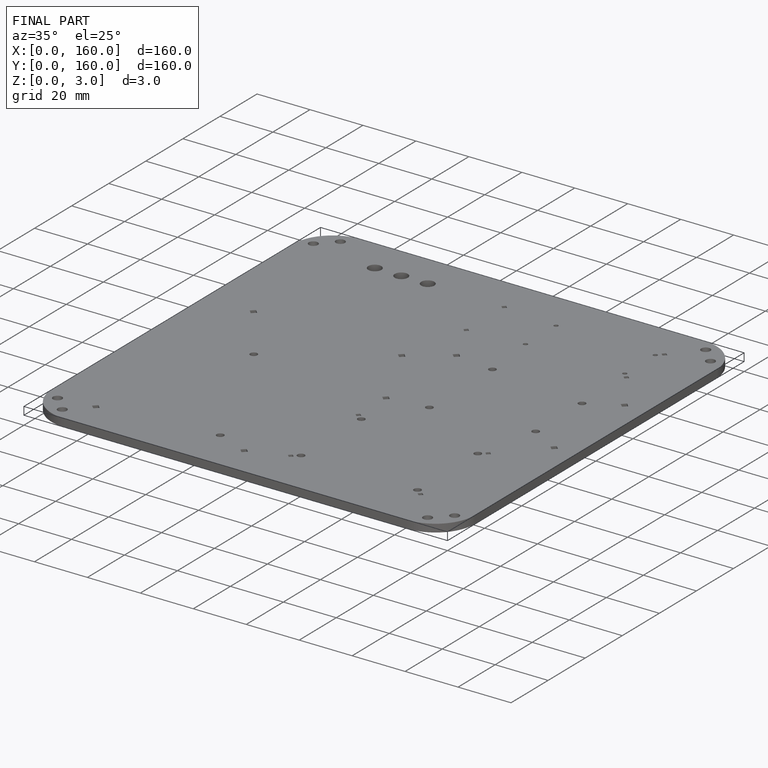
[diagram: finished part — iso view with bounding-box wireframe]
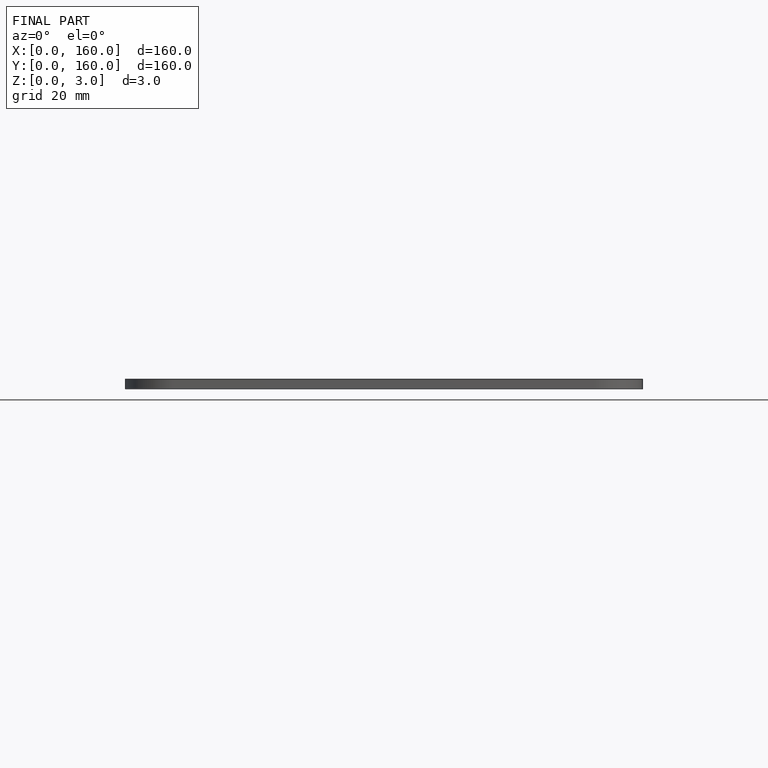
[diagram: finished part — front view with bounding-box wireframe]
